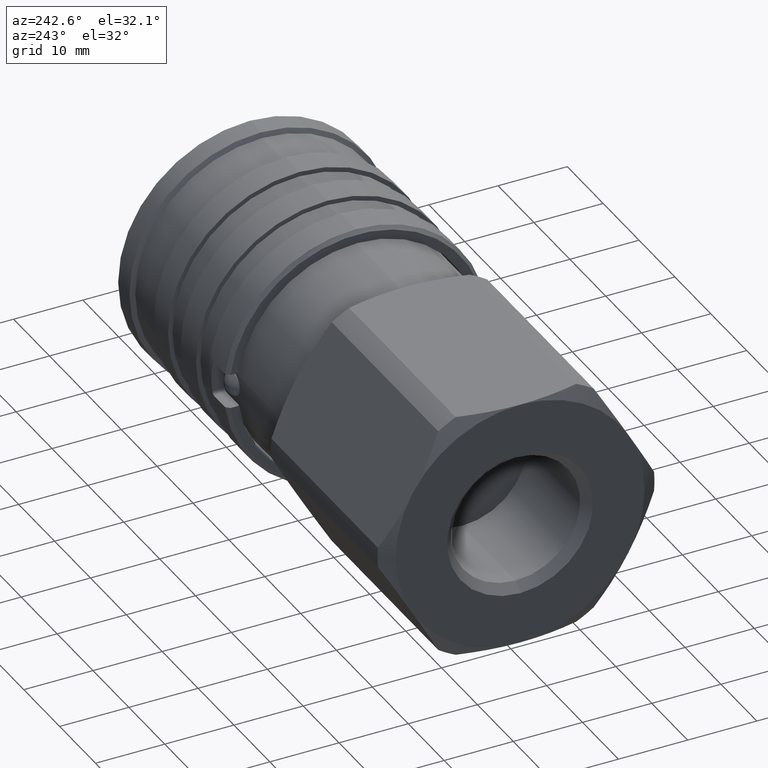
[diagram: clean part render]
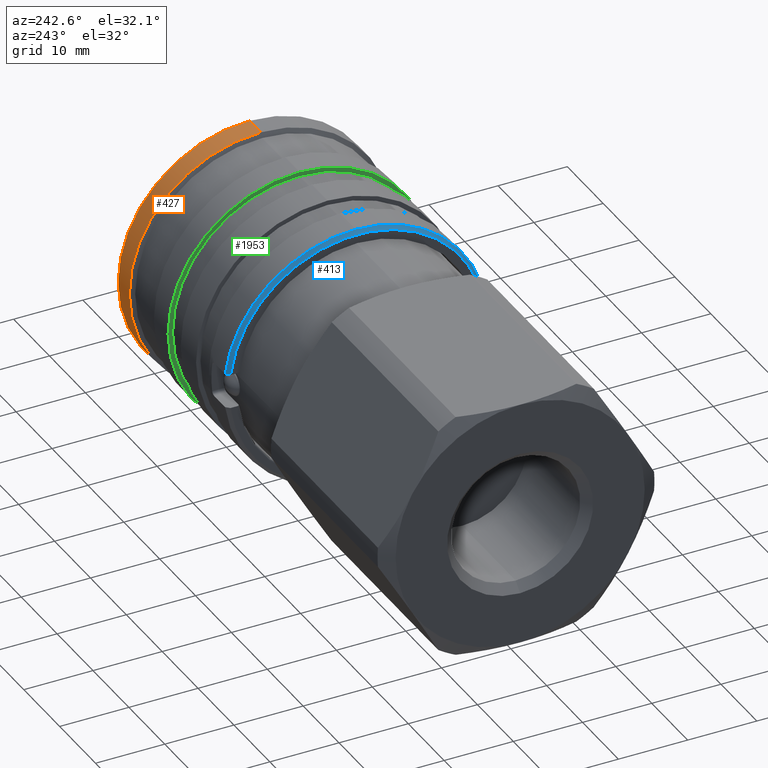
[diagram: same view with three faces highlighted in distinct colors, each labeled with its STEP entity id]
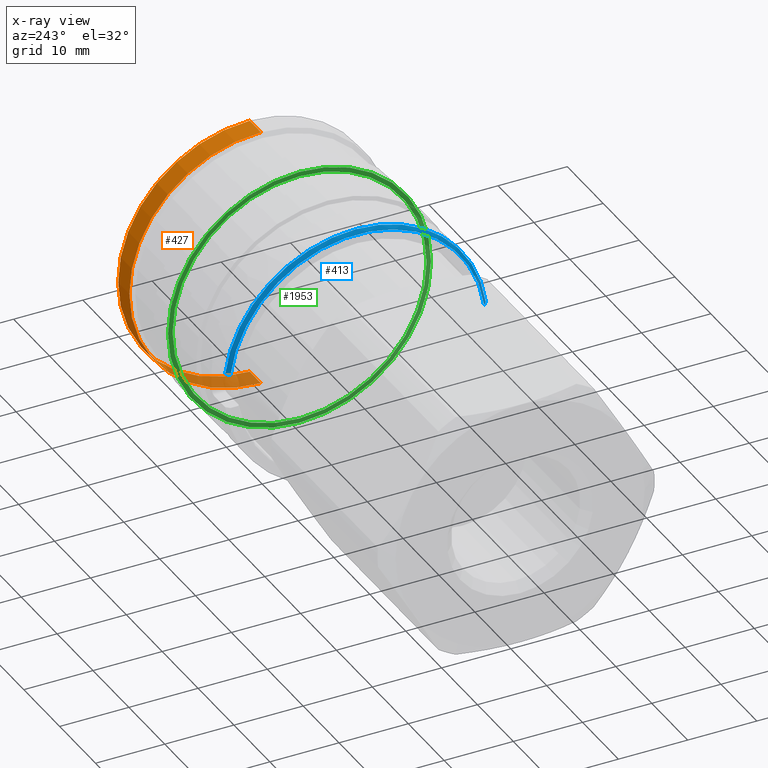
[diagram: x-ray of the same camera — body ghosted, the three highlighted faces saturated]
A machine part, auxiliary view with three faces highlighted in distinct colors.
The next image is the same camera in x-ray (body ghosted, the three faces saturated) — at least one of them is partly hidden behind the body in this view.
Their STEP definitions:

[orange] entity #427 — the highlighted cylindrical surface (partial cylindrical patch) has radius 19 mm, axis along (-1, -0, -0).
#162 = EDGE_LOOP ( 'NONE', ( #1331, #1329, #1330, #1328 ) ) ;
#427 = ADVANCED_FACE ( 'NONE', ( #577 ), #578, .T. ) ;
#577 = FACE_OUTER_BOUND ( 'NONE', #162, .T. ) ;
#578 = CYLINDRICAL_SURFACE ( 'NONE', #4130, 19.00000000000000000 ) ;
#595 = LINE ( 'NONE', #3612, #597 ) ;
#597 = VECTOR ( 'NONE', #3620, 1000.000000000000000 ) ;
#605 = LINE ( 'NONE', #3667, #606 ) ;
#606 = VECTOR ( 'NONE', #3672, 1000.000000000000000 ) ;
#609 = CIRCLE ( 'NONE', #4147, 19.00000000000000000 ) ;
#809 = EDGE_CURVE ( 'NONE', #1761, #1876, #595, .T. ) ;
#816 = EDGE_CURVE ( 'NONE', #1909, #1710, #605, .T. ) ;
#818 = EDGE_CURVE ( 'NONE', #1710, #1876, #609, .T. ) ;
#941 = EDGE_CURVE ( 'NONE', #1909, #1761, #2179, .T. ) ;
#1002 = AXIS2_PLACEMENT_3D ( 'NONE', #3768, #3767, #3766 ) ;
#1328 = ORIENTED_EDGE ( 'NONE', *, *, #816, .F. ) ;
#1329 = ORIENTED_EDGE ( 'NONE', *, *, #809, .T. ) ;
#1330 = ORIENTED_EDGE ( 'NONE', *, *, #818, .F. ) ;
#1331 = ORIENTED_EDGE ( 'NONE', *, *, #941, .T. ) ;
#1710 = VERTEX_POINT ( 'NONE', #3007 ) ;
#1761 = VERTEX_POINT ( 'NONE', #3042 ) ;
#1876 = VERTEX_POINT ( 'NONE', #3111 ) ;
#1909 = VERTEX_POINT ( 'NONE', #3132 ) ;
#2179 = CIRCLE ( 'NONE', #1002, 19.00000000000000000 ) ;
#3007 = CARTESIAN_POINT ( 'NONE',  ( 49.67527767497325200, 2.326828918379971800E-015, 19.00000000000000700 ) ) ;
#3042 = CARTESIAN_POINT ( 'NONE',  ( 52.79999999999999000, 2.326828918379971000E-015, -19.00000000000000000 ) ) ;
#3111 = CARTESIAN_POINT ( 'NONE',  ( 49.67527767497325200, 0.0000000000000000000, -19.00000000000000700 ) ) ;
#3132 = CARTESIAN_POINT ( 'NONE',  ( 52.79999999999999000, 0.0000000000000000000, 19.00000000000000000 ) ) ;
#3569 = CARTESIAN_POINT ( 'NONE',  ( 22.80000000000000100, 0.0000000000000000000, 0.0000000000000000000 ) ) ;
#3571 = DIRECTION ( 'NONE',  ( -1.000000000000000000, -0.0000000000000000000, -0.0000000000000000000 ) ) ;
#3612 = CARTESIAN_POINT ( 'NONE',  ( 22.80000000000000100, 2.326828918379971000E-015, -19.00000000000000000 ) ) ;
#3620 = DIRECTION ( 'NONE',  ( -1.000000000000000000, -0.0000000000000000000, -0.0000000000000000000 ) ) ;
#3640 = DIRECTION ( 'NONE',  ( 0.0000000000000000000, 0.0000000000000000000, 1.000000000000000000 ) ) ;
#3647 = DIRECTION ( 'NONE',  ( 0.0000000000000000000, 0.0000000000000000000, 1.000000000000000000 ) ) ;
#3667 = CARTESIAN_POINT ( 'NONE',  ( 22.80000000000000100, 0.0000000000000000000, 19.00000000000000000 ) ) ;
#3668 = DIRECTION ( 'NONE',  ( -1.000000000000000000, -0.0000000000000000000, -0.0000000000000000000 ) ) ;
#3670 = CARTESIAN_POINT ( 'NONE',  ( 49.67527767497325200, 0.0000000000000000000, 0.0000000000000000000 ) ) ;
#3672 = DIRECTION ( 'NONE',  ( -1.000000000000000000, -0.0000000000000000000, -0.0000000000000000000 ) ) ;
#3766 = DIRECTION ( 'NONE',  ( 0.0000000000000000000, 0.0000000000000000000, -1.000000000000000000 ) ) ;
#3767 = DIRECTION ( 'NONE',  ( -1.000000000000000000, -0.0000000000000000000, -0.0000000000000000000 ) ) ;
#3768 = CARTESIAN_POINT ( 'NONE',  ( 52.79999999999999000, 0.0000000000000000000, 0.0000000000000000000 ) ) ;
#4130 = AXIS2_PLACEMENT_3D ( 'NONE', #3569, #3571, #3640 ) ;
#4147 = AXIS2_PLACEMENT_3D ( 'NONE', #3670, #3668, #3647 ) ;

[blue] entity #413 — the highlighted conical surface has half-angle 45 deg.
#1 = DIRECTION ( 'NONE',  ( 0.0000000000000000000, 0.0000000000000000000, 1.000000000000000000 ) ) ;
#6 = CARTESIAN_POINT ( 'NONE',  ( 23.13331333689216200, -18.66665960350228200, 2.499999999999995600 ) ) ;
#13 = CARTESIAN_POINT ( 'NONE',  ( 22.96664612485988500, -18.49849167156939700, 2.499999999999995600 ) ) ;
#18 = CARTESIAN_POINT ( 'NONE',  ( 23.30000000000000400, 0.0000000000000000000, 0.0000000000000000000 ) ) ;
#19 = DIRECTION ( 'NONE',  ( 1.000000000000000000, 0.0000000000000000000, 0.0000000000000000000 ) ) ;
#22 = CARTESIAN_POINT ( 'NONE',  ( 23.30000000000000400, -18.83480820183736500, 2.499999999999995600 ) ) ;
#23 = CARTESIAN_POINT ( 'NONE',  ( 23.30000000000000400, 0.0000000000000000000, 0.0000000000000000000 ) ) ;
#26 = CARTESIAN_POINT ( 'NONE',  ( 22.80000000000000100, -18.33030277982335200, 2.499999999999995600 ) ) ;
#27 = DIRECTION ( 'NONE',  ( 0.0000000000000000000, -1.776356839400250500E-015, 1.000000000000000000 ) ) ;
#29 = DIRECTION ( 'NONE',  ( 1.000000000000000000, 0.0000000000000000000, 0.0000000000000000000 ) ) ;
#194 = EDGE_LOOP ( 'NONE', ( #1315, #1316, #1317, #1318, #2474 ) ) ;
#413 = ADVANCED_FACE ( 'NONE', ( #554 ), #555, .T. ) ;
#554 = FACE_OUTER_BOUND ( 'NONE', #194, .T. ) ;
#555 = CONICAL_SURFACE ( 'NONE', #2534, 18.49999999999999300, 0.7853981633974520500 ) ;
#596 = CIRCLE ( 'NONE', #4141, 18.49999999999999300 ) ;
#639 = CIRCLE ( 'NONE', #1940, 19.00000000000000000 ) ;
#646 = CIRCLE ( 'NONE', #1942, 19.00000000000000000 ) ;
#808 = EDGE_CURVE ( 'NONE', #1666, #1645, #596, .T. ) ;
#840 = EDGE_CURVE ( 'NONE', #1731, #1813, #639, .T. ) ;
#843 = EDGE_CURVE ( 'NONE', #1666, #1660, #2423, .T. ) ;
#848 = EDGE_CURVE ( 'NONE', #1813, #1660, #646, .T. ) ;
#867 = EDGE_CURVE ( 'NONE', #1731, #1645, #2455, .T. ) ;
#1315 = ORIENTED_EDGE ( 'NONE', *, *, #840, .F. ) ;
#1316 = ORIENTED_EDGE ( 'NONE', *, *, #867, .T. ) ;
#1317 = ORIENTED_EDGE ( 'NONE', *, *, #808, .F. ) ;
#1318 = ORIENTED_EDGE ( 'NONE', *, *, #843, .T. ) ;
#1469 = DIRECTION ( 'NONE',  ( 1.000000000000000000, 0.0000000000000000000, 0.0000000000000000000 ) ) ;
#1472 = DIRECTION ( 'NONE',  ( 0.0000000000000000000, 0.0000000000000000000, -1.000000000000000000 ) ) ;
#1586 = CARTESIAN_POINT ( 'NONE',  ( 22.80000000000000100, 0.0000000000000000000, 0.0000000000000000000 ) ) ;
#1645 = VERTEX_POINT ( 'NONE', #2968 ) ;
#1660 = VERTEX_POINT ( 'NONE', #2977 ) ;
#1666 = VERTEX_POINT ( 'NONE', #2981 ) ;
#1731 = VERTEX_POINT ( 'NONE', #3021 ) ;
#1813 = VERTEX_POINT ( 'NONE', #3074 ) ;
#1940 = AXIS2_PLACEMENT_3D ( 'NONE', #18, #19, #27 ) ;
#1942 = AXIS2_PLACEMENT_3D ( 'NONE', #23, #29, #1 ) ;
#2100 = CARTESIAN_POINT ( 'NONE',  ( 23.30000000000000400, 18.83480820183736500, 2.500000000000000000 ) ) ;
#2101 = CARTESIAN_POINT ( 'NONE',  ( 22.80000000000000100, 18.33030277982335200, 2.500000000000000000 ) ) ;
#2113 = CARTESIAN_POINT ( 'NONE',  ( 22.96664607971608500, 18.49849162600766300, 2.500000000000000000 ) ) ;
#2120 = CARTESIAN_POINT ( 'NONE',  ( 23.13331329293617200, 18.66665955916077000, 2.500000000000000000 ) ) ;
#2423 = B_SPLINE_CURVE_WITH_KNOTS ( 'NONE', 3,
 ( #26, #13, #6, #22 ),
 .UNSPECIFIED., .F., .F.,
 ( 4, 4 ),
 ( 0.08218739773512788400, 0.08290019076865962100 ),
 .UNSPECIFIED. ) ;
#2455 = B_SPLINE_CURVE_WITH_KNOTS ( 'NONE', 3,
 ( #2100, #2120, #2113, #2101 ),
 .UNSPECIFIED., .F., .F.,
 ( 4, 4 ),
 ( 0.03231093382238350900, 0.03302123335829899900 ),
 .UNSPECIFIED. ) ;
#2474 = ORIENTED_EDGE ( 'NONE', *, *, #848, .F. ) ;
#2534 = AXIS2_PLACEMENT_3D ( 'NONE', #1586, #1469, #1472 ) ;
#2968 = CARTESIAN_POINT ( 'NONE',  ( 22.80000000000000100, 18.33030277982335200, 2.500000000000000000 ) ) ;
#2977 = CARTESIAN_POINT ( 'NONE',  ( 23.30000000000000400, -18.83480820183736500, 2.499999999999995600 ) ) ;
#2981 = CARTESIAN_POINT ( 'NONE',  ( 22.80000000000000100, -18.33030277982335200, 2.499999999999995600 ) ) ;
#3021 = CARTESIAN_POINT ( 'NONE',  ( 23.30000000000000400, 18.83480820183736500, 2.500000000000000000 ) ) ;
#3074 = CARTESIAN_POINT ( 'NONE',  ( 23.30000000000000400, 0.0000000000000000000, 19.00000000000000000 ) ) ;
#3600 = DIRECTION ( 'NONE',  ( 0.0000000000000000000, 0.0000000000000000000, 1.000000000000000000 ) ) ;
#3627 = CARTESIAN_POINT ( 'NONE',  ( 22.80000000000000100, 0.0000000000000000000, 0.0000000000000000000 ) ) ;
#3628 = DIRECTION ( 'NONE',  ( -1.000000000000000000, -0.0000000000000000000, -0.0000000000000000000 ) ) ;
#4141 = AXIS2_PLACEMENT_3D ( 'NONE', #3627, #3628, #3600 ) ;

[green] entity #1953 — the highlighted planar face has unit normal (-1, 0, -0).
#131 = EDGE_LOOP ( 'NONE', ( #2283, #2282 ) ) ;
#186 = EDGE_LOOP ( 'NONE', ( #2281, #3461 ) ) ;
#316 = FACE_OUTER_BOUND ( 'NONE', #131, .T. ) ;
#317 = FACE_BOUND ( 'NONE', #186, .T. ) ;
#601 = CIRCLE ( 'NONE', #4134, 18.35000000000000100 ) ;
#633 = CIRCLE ( 'NONE', #1945, 19.00000000000000000 ) ;
#673 = CIRCLE ( 'NONE', #4020, 19.00000000000000000 ) ;
#683 = CIRCLE ( 'NONE', #4024, 18.35000000000000100 ) ;
#812 = EDGE_CURVE ( 'NONE', #1721, #1720, #601, .T. ) ;
#836 = EDGE_CURVE ( 'NONE', #1871, #1699, #633, .T. ) ;
#869 = EDGE_CURVE ( 'NONE', #1699, #1871, #673, .T. ) ;
#875 = EDGE_CURVE ( 'NONE', #1720, #1721, #683, .T. ) ;
#1088 = AXIS2_PLACEMENT_3D ( 'NONE', #3148, #3149, #3150 ) ;
#1699 = VERTEX_POINT ( 'NONE', #3000 ) ;
#1720 = VERTEX_POINT ( 'NONE', #3012 ) ;
#1721 = VERTEX_POINT ( 'NONE', #3013 ) ;
#1871 = VERTEX_POINT ( 'NONE', #3108 ) ;
#1945 = AXIS2_PLACEMENT_3D ( 'NONE', #3646, #3644, #3679 ) ;
#1953 = ADVANCED_FACE ( 'NONE', ( #316, #317 ), #3147, .T. ) ;
#2104 = DIRECTION ( 'NONE',  ( -1.000000000000000000, -0.0000000000000000000, -0.0000000000000000000 ) ) ;
#2121 = CARTESIAN_POINT ( 'NONE',  ( 38.90000000000000600, 0.0000000000000000000, 0.0000000000000000000 ) ) ;
#2125 = DIRECTION ( 'NONE',  ( 0.0000000000000000000, 0.0000000000000000000, 1.000000000000000000 ) ) ;
#2281 = ORIENTED_EDGE ( 'NONE', *, *, #812, .F. ) ;
#2282 = ORIENTED_EDGE ( 'NONE', *, *, #869, .T. ) ;
#2283 = ORIENTED_EDGE ( 'NONE', *, *, #836, .T. ) ;
#3000 = CARTESIAN_POINT ( 'NONE',  ( 38.90000000000000600, 2.326828918379971000E-015, -19.00000000000000000 ) ) ;
#3012 = CARTESIAN_POINT ( 'NONE',  ( 38.90000000000000600, 2.247226876435393400E-015, -18.35000000000000100 ) ) ;
#3013 = CARTESIAN_POINT ( 'NONE',  ( 38.90000000000000600, 0.0000000000000000000, 18.35000000000000100 ) ) ;
#3108 = CARTESIAN_POINT ( 'NONE',  ( 38.90000000000000600, 0.0000000000000000000, 19.00000000000000000 ) ) ;
#3147 = PLANE ( 'NONE',  #1088 ) ;
#3148 = CARTESIAN_POINT ( 'NONE',  ( 38.90000000000000600, 18.35000000000000100, 0.0000000000000000000 ) ) ;
#3149 = DIRECTION ( 'NONE',  ( -1.000000000000000000, 0.0000000000000000000, -0.0000000000000000000 ) ) ;
#3150 = DIRECTION ( 'NONE',  ( -0.0000000000000000000, 0.0000000000000000000, 1.000000000000000000 ) ) ;
#3461 = ORIENTED_EDGE ( 'NONE', *, *, #875, .F. ) ;
#3577 = CARTESIAN_POINT ( 'NONE',  ( 38.90000000000000600, 0.0000000000000000000, 0.0000000000000000000 ) ) ;
#3580 = DIRECTION ( 'NONE',  ( -1.000000000000000000, -0.0000000000000000000, -0.0000000000000000000 ) ) ;
#3581 = DIRECTION ( 'NONE',  ( 0.0000000000000000000, 0.0000000000000000000, 1.000000000000000000 ) ) ;
#3644 = DIRECTION ( 'NONE',  ( -1.000000000000000000, -0.0000000000000000000, -0.0000000000000000000 ) ) ;
#3646 = CARTESIAN_POINT ( 'NONE',  ( 38.90000000000000600, 0.0000000000000000000, 0.0000000000000000000 ) ) ;
#3679 = DIRECTION ( 'NONE',  ( 0.0000000000000000000, 0.0000000000000000000, 1.000000000000000000 ) ) ;
#3874 = DIRECTION ( 'NONE',  ( -1.000000000000000000, -0.0000000000000000000, -0.0000000000000000000 ) ) ;
#3891 = CARTESIAN_POINT ( 'NONE',  ( 38.90000000000000600, 0.0000000000000000000, 0.0000000000000000000 ) ) ;
#3906 = DIRECTION ( 'NONE',  ( 0.0000000000000000000, 0.0000000000000000000, 1.000000000000000000 ) ) ;
#4020 = AXIS2_PLACEMENT_3D ( 'NONE', #2121, #2104, #2125 ) ;
#4024 = AXIS2_PLACEMENT_3D ( 'NONE', #3891, #3874, #3906 ) ;
#4134 = AXIS2_PLACEMENT_3D ( 'NONE', #3577, #3580, #3581 ) ;